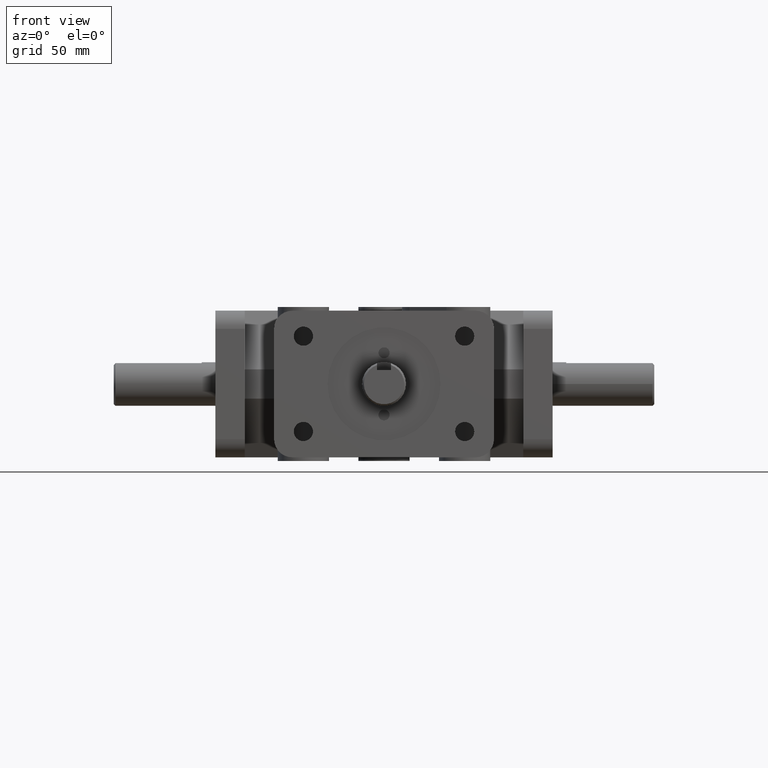
[diagram: clean part render]
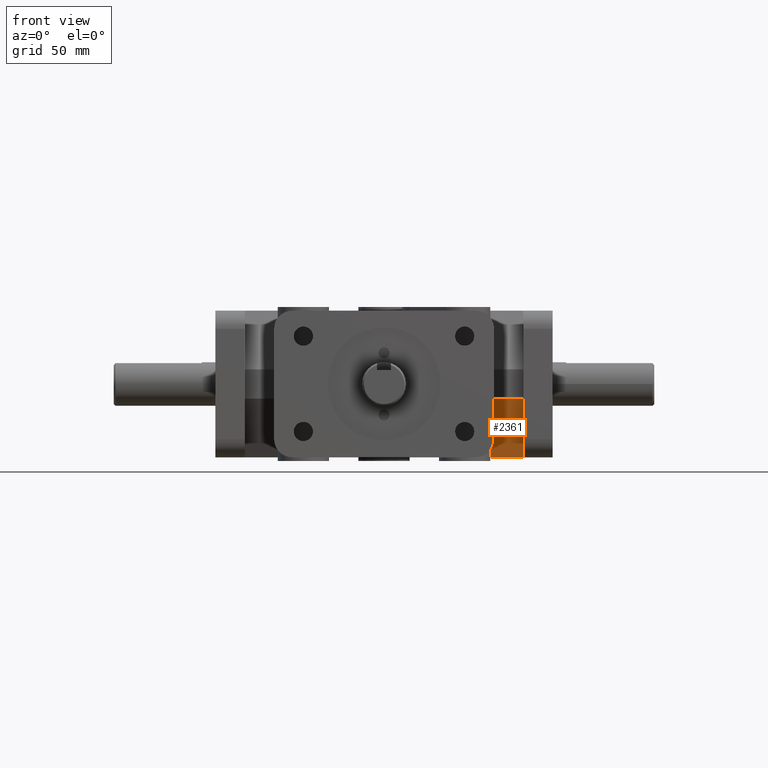
[diagram: same view with one face highlighted and labeled with its STEP entity id]
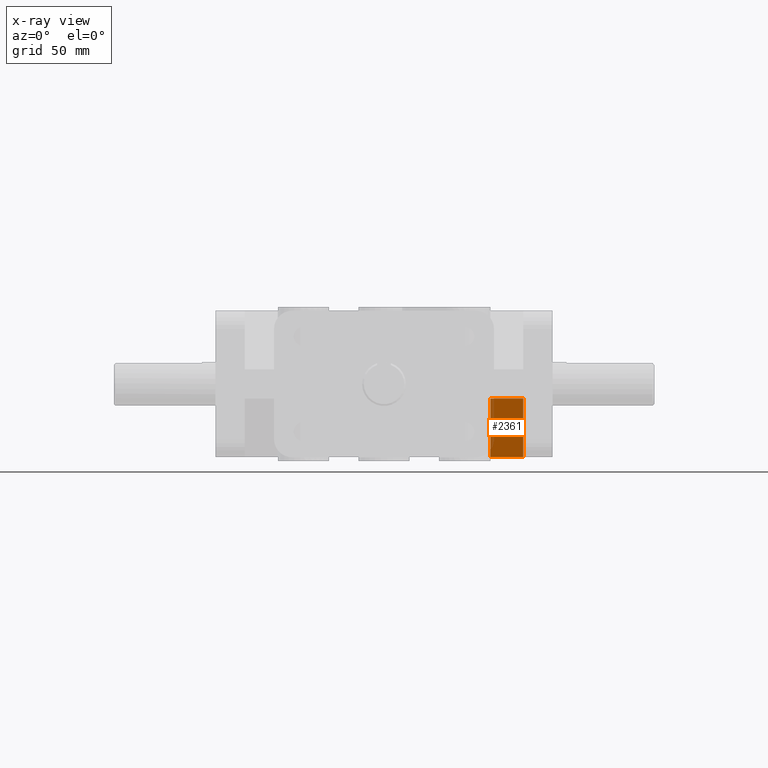
[diagram: x-ray of the same camera — body ghosted, the highlighted face saturated]
A machine part, front view. The second image highlights one B-rep face of the part: STEP entity #2361.
The next image is the same camera in x-ray: the body ghosted, the highlighted face saturated — about 9% of this face is hidden behind the body in this view.
In plain terms, the highlighted planar face has unit normal (0, -0.866, -0.5).
Its self-contained STEP definition (entity closure, byte-faithful):
#115=PLANE('',#2610);
#242=FACE_OUTER_BOUND('',#399,.T.);
#399=EDGE_LOOP('',(#2035,#2036,#2037,#2038));
#527=LINE('',#3653,#749);
#541=LINE('',#3691,#763);
#636=LINE('',#3957,#858);
#637=LINE('',#3958,#859);
#749=VECTOR('',#2936,1.);
#763=VECTOR('',#2972,1.);
#858=VECTOR('',#3231,1.);
#859=VECTOR('',#3232,1.);
#1112=VERTEX_POINT('',#3650);
#1113=VERTEX_POINT('',#3652);
#1126=VERTEX_POINT('',#3690);
#1215=VERTEX_POINT('',#3956);
#1363=EDGE_CURVE('',#1113,#1112,#527,.F.);
#1385=EDGE_CURVE('',#1126,#1113,#541,.T.);
#1519=EDGE_CURVE('',#1215,#1126,#636,.F.);
#1520=EDGE_CURVE('',#1112,#1215,#637,.T.);
#2035=ORIENTED_EDGE('',*,*,#1519,.T.);
#2036=ORIENTED_EDGE('',*,*,#1385,.T.);
#2037=ORIENTED_EDGE('',*,*,#1363,.T.);
#2038=ORIENTED_EDGE('',*,*,#1520,.T.);
#2361=ADVANCED_FACE('',(#242),#115,.T.);
#2610=AXIS2_PLACEMENT_3D('',#3955,#3229,#3230);
#2936=DIRECTION('',(0.,0.499999825156179,-0.866025504730542));
#2972=DIRECTION('',(1.,0.,0.));
#3229=DIRECTION('center_axis',(0.,-0.866025504730542,-0.499999825156179));
#3230=DIRECTION('ref_axis',(0.,-0.499999825156179,0.866025504730542));
#3231=DIRECTION('',(0.,-0.499999825156179,0.866025504730542));
#3232=DIRECTION('',(-1.,0.,0.));
#3650=CARTESIAN_POINT('',(60.325,79.375,-6.35));
#3652=CARTESIAN_POINT('',(60.325,94.03969,-31.75));
#3653=CARTESIAN_POINT('',(60.325,81.6663574919962,-10.318749444871));
#3690=CARTESIAN_POINT('',(46.0375,94.03969,-31.75));
#3691=CARTESIAN_POINT('',(23.01875,94.03969,-31.75));
#3955=CARTESIAN_POINT('Origin',(23.01875,86.707345,-19.05));
#3956=CARTESIAN_POINT('',(46.0375,79.375,-6.35));
#3957=CARTESIAN_POINT('',(46.0375,81.2694827695608,-9.63134194086908));
#3958=CARTESIAN_POINT('',(23.01875,79.375,-6.35));